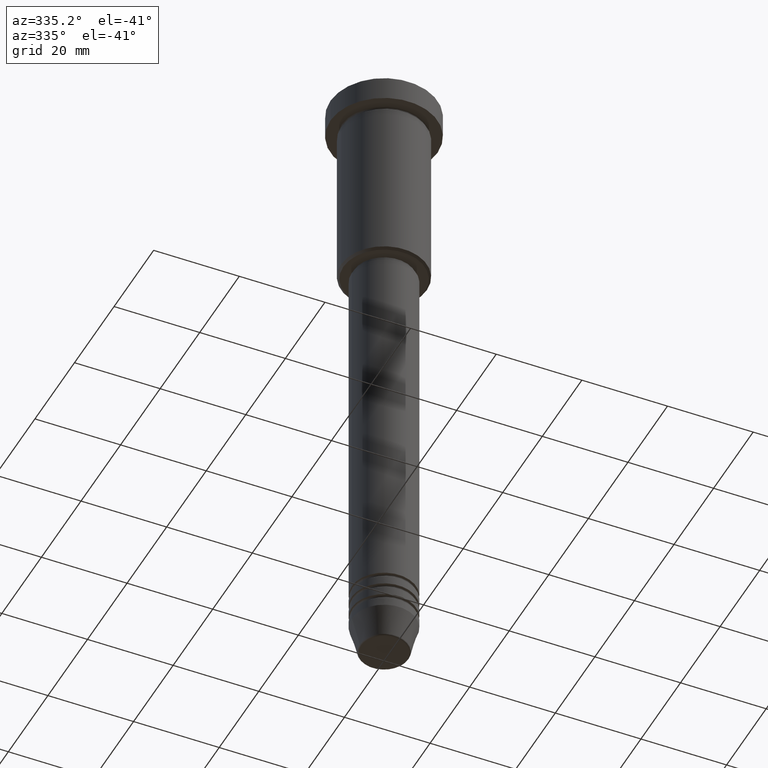
[diagram: clean part render]
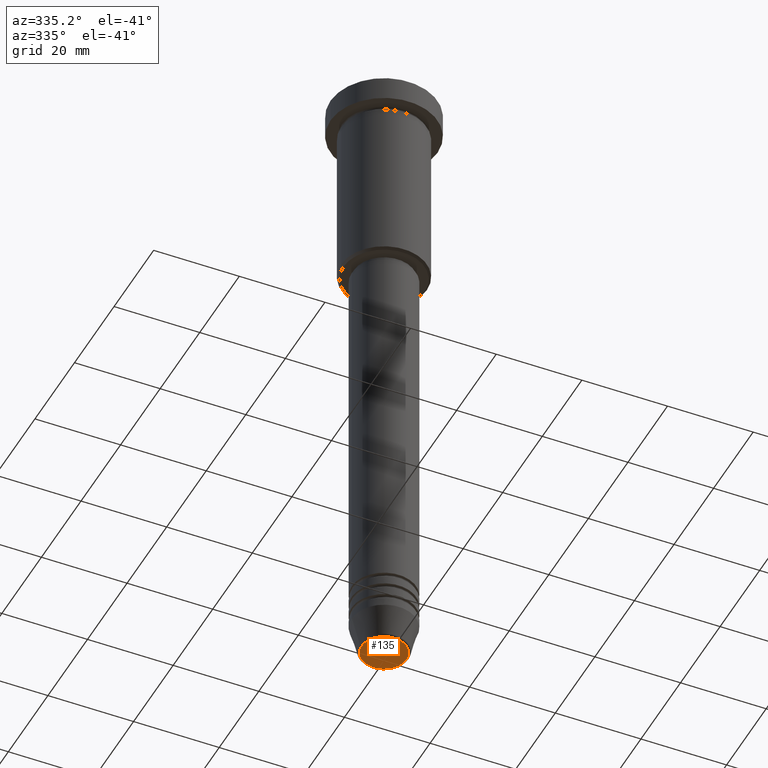
[diagram: same view with one face highlighted and labeled with its STEP entity id]
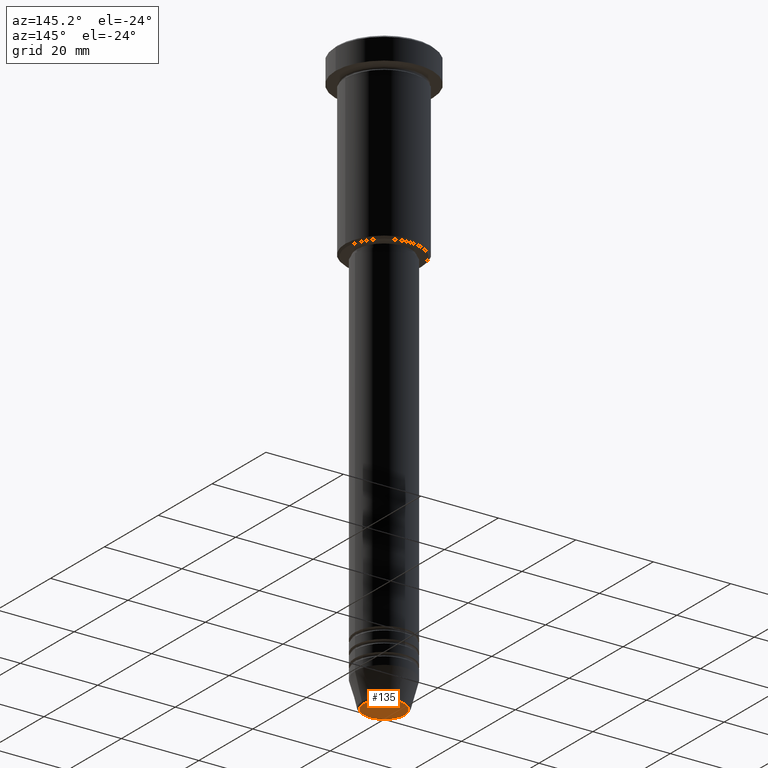
[diagram: same view with one face highlighted and labeled with its STEP entity id]
A machine part, auxiliary view. The second image highlights one B-rep face of the part: STEP entity #135.
A second angle (auxiliary view) of the same face is appended — the face is thin or edge-on in the first view.
In plain terms, the highlighted planar face has unit normal (0, -0, 1).
Its self-contained STEP definition (entity closure, byte-faithful):
#28 = ORIENTED_EDGE ( 'NONE', *, *, #1112, .T. ) ;
#35 = DIRECTION ( 'NONE',  ( 0.000000000000000000, 0.000000000000000000, -1.000000000000000000 ) ) ;
#50 = AXIS2_PLACEMENT_3D ( 'NONE', #851, #35, #402 ) ;
#72 = VERTEX_POINT ( 'NONE', #809 ) ;
#135 = ADVANCED_FACE ( 'NONE', ( #804 ), #534, .F. ) ;
#368 = AXIS2_PLACEMENT_3D ( 'NONE', #986, #564, #902 ) ;
#402 = DIRECTION ( 'NONE',  ( 1.000000000000000000, 0.000000000000000000, 0.000000000000000000 ) ) ;
#476 = EDGE_CURVE ( 'NONE', #72, #522, #1092, .T. ) ;
#522 = VERTEX_POINT ( 'NONE', #1080 ) ;
#534 = PLANE ( 'NONE',  #368 ) ;
#539 = DIRECTION ( 'NONE',  ( 1.000000000000000000, 0.000000000000000000, 0.000000000000000000 ) ) ;
#564 = DIRECTION ( 'NONE',  ( 0.000000000000000000, -0.000000000000000000, 1.000000000000000000 ) ) ;
#569 = CIRCLE ( 'NONE', #50, 5.240692158992665384 ) ;
#591 = EDGE_LOOP ( 'NONE', ( #28, #1176 ) ) ;
#687 = CARTESIAN_POINT ( 'NONE',  ( 0.000000000000000000, 0.000000000000000000, -150.9999999999999716 ) ) ;
#695 = DIRECTION ( 'NONE',  ( 0.000000000000000000, 0.000000000000000000, -1.000000000000000000 ) ) ;
#711 = AXIS2_PLACEMENT_3D ( 'NONE', #687, #695, #539 ) ;
#804 = FACE_OUTER_BOUND ( 'NONE', #591, .T. ) ;
#809 = CARTESIAN_POINT ( 'NONE',  ( -5.240692158992665384, 6.713726370671667334E-16, -150.9999999999999716 ) ) ;
#851 = CARTESIAN_POINT ( 'NONE',  ( 0.000000000000000000, 0.000000000000000000, -150.9999999999999716 ) ) ;
#902 = DIRECTION ( 'NONE',  ( 1.000000000000000000, 0.000000000000000000, 0.000000000000000000 ) ) ;
#986 = CARTESIAN_POINT ( 'NONE',  ( 0.000000000000000000, 0.000000000000000000, -150.9999999999999716 ) ) ;
#1080 = CARTESIAN_POINT ( 'NONE',  ( 5.240692158992665384, 0.000000000000000000, -150.9999999999999716 ) ) ;
#1092 = CIRCLE ( 'NONE', #711, 5.240692158992665384 ) ;
#1112 = EDGE_CURVE ( 'NONE', #522, #72, #569, .T. ) ;
#1176 = ORIENTED_EDGE ( 'NONE', *, *, #476, .T. ) ;